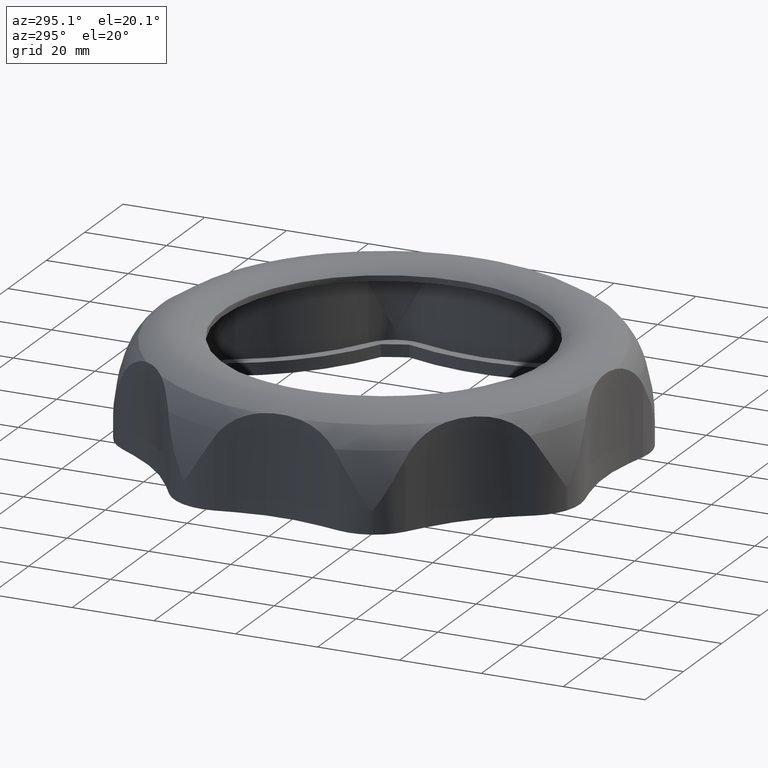
[diagram: clean part render]
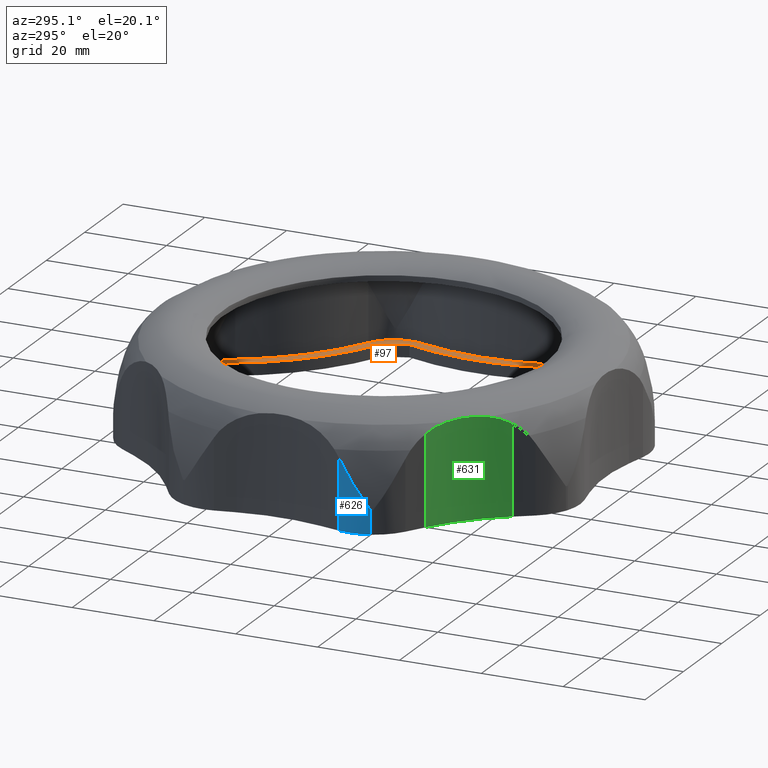
[diagram: same view with three faces highlighted in distinct colors, each labeled with its STEP entity id]
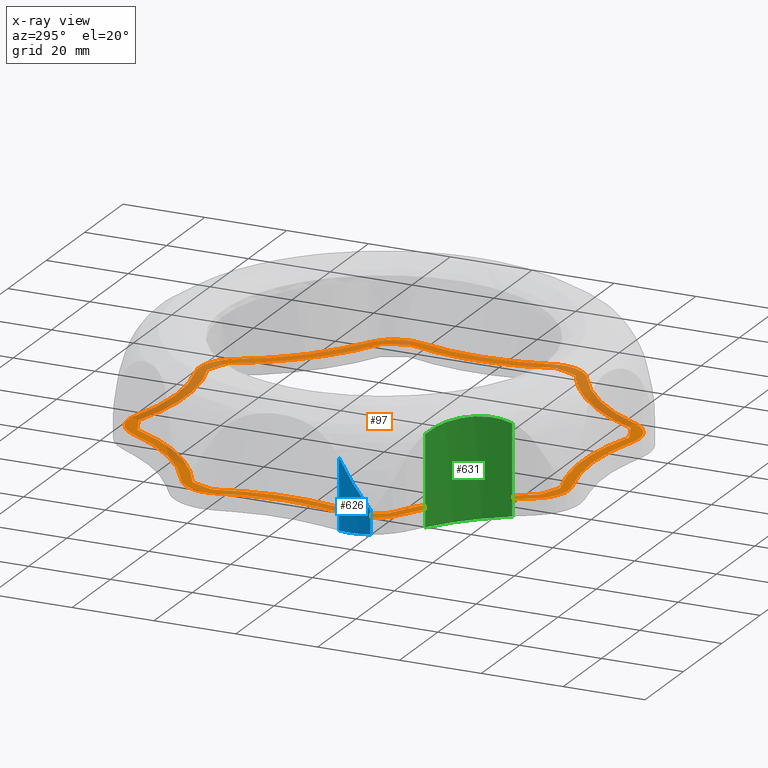
[diagram: x-ray of the same camera — body ghosted, the three highlighted faces saturated]
A machine part, auxiliary view with three faces highlighted in distinct colors.
The next image is the same camera in x-ray (body ghosted, the three faces saturated) — at least one of them is partly hidden behind the body in this view.
Their STEP definitions:

[orange] entity #97 — the highlighted planar face has unit normal (0, -0, 1).
#97 = ADVANCED_FACE( '', ( #2423, #2424 ), #2425, .T. );
#2423 = FACE_BOUND( '', #7059, .T. );
#2424 = FACE_OUTER_BOUND( '', #7060, .T. );
#2425 = PLANE( '', #7061 );
#7059 = EDGE_LOOP( '', ( #14120, #14121, #14122, #14123, #14124, #14125, #14126, #14127, #14128, #14129, #14130, #14131, #14132, #14133, #14134, #14135 ) );
#7060 = EDGE_LOOP( '', ( #14136, #14137, #14138, #14139, #14140, #14141, #14142, #14143, #14144, #14145, #14146, #14147, #14148, #14149, #14150, #14151 ) );
#7061 = AXIS2_PLACEMENT_3D( '', #14152, #14153, #14154 );
#14120 = ORIENTED_EDGE( '', *, *, #34302, .F. );
#14121 = ORIENTED_EDGE( '', *, *, #34303, .F. );
#14122 = ORIENTED_EDGE( '', *, *, #34304, .F. );
#14123 = ORIENTED_EDGE( '', *, *, #34305, .F. );
#14124 = ORIENTED_EDGE( '', *, *, #34306, .F. );
#14125 = ORIENTED_EDGE( '', *, *, #34307, .F. );
#14126 = ORIENTED_EDGE( '', *, *, #34308, .F. );
#14127 = ORIENTED_EDGE( '', *, *, #34309, .F. );
#14128 = ORIENTED_EDGE( '', *, *, #34310, .F. );
#14129 = ORIENTED_EDGE( '', *, *, #34311, .F. );
#14130 = ORIENTED_EDGE( '', *, *, #34312, .F. );
#14131 = ORIENTED_EDGE( '', *, *, #34313, .F. );
#14132 = ORIENTED_EDGE( '', *, *, #34314, .F. );
#14133 = ORIENTED_EDGE( '', *, *, #34315, .F. );
#14134 = ORIENTED_EDGE( '', *, *, #34316, .F. );
#14135 = ORIENTED_EDGE( '', *, *, #34317, .F. );
#14136 = ORIENTED_EDGE( '', *, *, #34318, .T. );
#14137 = ORIENTED_EDGE( '', *, *, #34319, .T. );
#14138 = ORIENTED_EDGE( '', *, *, #34320, .T. );
#14139 = ORIENTED_EDGE( '', *, *, #34321, .T. );
#14140 = ORIENTED_EDGE( '', *, *, #34322, .T. );
#14141 = ORIENTED_EDGE( '', *, *, #34323, .T. );
#14142 = ORIENTED_EDGE( '', *, *, #34324, .T. );
#14143 = ORIENTED_EDGE( '', *, *, #34325, .T. );
#14144 = ORIENTED_EDGE( '', *, *, #34326, .T. );
#14145 = ORIENTED_EDGE( '', *, *, #34327, .T. );
#14146 = ORIENTED_EDGE( '', *, *, #34328, .T. );
#14147 = ORIENTED_EDGE( '', *, *, #34329, .T. );
#14148 = ORIENTED_EDGE( '', *, *, #34330, .T. );
#14149 = ORIENTED_EDGE( '', *, *, #34331, .T. );
#14150 = ORIENTED_EDGE( '', *, *, #34332, .T. );
#14151 = ORIENTED_EDGE( '', *, *, #34333, .T. );
#14152 = CARTESIAN_POINT( '', ( 0.000000000000000, 0.000000000000000, 3.00026158654195 ) );
#14153 = DIRECTION( '', ( 2.34318281388423E-017, -5.65694372839885E-017, 1.00000000000000 ) );
#14154 = DIRECTION( '', ( 0.382683432365090, -0.923879532511287, -6.12303176911189E-017 ) );
#34302 = EDGE_CURVE( '', #43152, #43153, #43154, .T. );
#34303 = EDGE_CURVE( '', #43155, #43152, #43156, .T. );
#34304 = EDGE_CURVE( '', #43157, #43155, #43158, .T. );
#34305 = EDGE_CURVE( '', #43159, #43157, #43160, .T. );
#34306 = EDGE_CURVE( '', #43161, #43159, #43162, .T. );
#34307 = EDGE_CURVE( '', #43163, #43161, #43164, .T. );
#34308 = EDGE_CURVE( '', #43165, #43163, #43166, .T. );
#34309 = EDGE_CURVE( '', #43167, #43165, #43168, .T. );
#34310 = EDGE_CURVE( '', #43169, #43167, #43170, .T. );
#34311 = EDGE_CURVE( '', #43171, #43169, #43172, .T. );
#34312 = EDGE_CURVE( '', #43173, #43171, #43174, .T. );
#34313 = EDGE_CURVE( '', #43175, #43173, #43176, .T. );
#34314 = EDGE_CURVE( '', #43177, #43175, #43178, .T. );
#34315 = EDGE_CURVE( '', #43179, #43177, #43180, .T. );
#34316 = EDGE_CURVE( '', #43181, #43179, #43182, .T. );
#34317 = EDGE_CURVE( '', #43153, #43181, #43183, .T. );
#34318 = EDGE_CURVE( '', #43184, #43185, #43186, .F. );
#34319 = EDGE_CURVE( '', #43185, #43187, #43188, .T. );
#34320 = EDGE_CURVE( '', #43187, #43189, #43190, .F. );
#34321 = EDGE_CURVE( '', #43189, #43191, #43192, .T. );
#34322 = EDGE_CURVE( '', #43191, #43193, #43194, .F. );
#34323 = EDGE_CURVE( '', #43193, #43195, #43196, .T. );
#34324 = EDGE_CURVE( '', #43195, #43197, #43198, .F. );
#34325 = EDGE_CURVE( '', #43197, #43199, #43200, .T. );
#34326 = EDGE_CURVE( '', #43199, #43201, #43202, .F. );
#34327 = EDGE_CURVE( '', #43201, #43203, #43204, .T. );
#34328 = EDGE_CURVE( '', #43203, #43205, #43206, .F. );
#34329 = EDGE_CURVE( '', #43205, #43207, #43208, .T. );
#34330 = EDGE_CURVE( '', #43207, #43209, #43210, .F. );
#34331 = EDGE_CURVE( '', #43209, #43211, #43212, .T. );
#34332 = EDGE_CURVE( '', #43211, #43213, #43214, .F. );
#34333 = EDGE_CURVE( '', #43213, #43184, #43215, .T. );
#43152 = VERTEX_POINT( '', #61375 );
#43153 = VERTEX_POINT( '', #61376 );
#43154 = CIRCLE( '', #61377, 55.0000000000000 );
#43155 = VERTEX_POINT( '', #61378 );
#43156 = CIRCLE( '', #61379, 54.5000000000000 );
#43157 = VERTEX_POINT( '', #61380 );
#43158 = CIRCLE( '', #61381, 55.0000000000000 );
#43159 = VERTEX_POINT( '', #61382 );
#43160 = CIRCLE( '', #61383, 54.5000000000000 );
#43161 = VERTEX_POINT( '', #61384 );
#43162 = CIRCLE( '', #61385, 55.0000000000000 );
#43163 = VERTEX_POINT( '', #61386 );
#43164 = CIRCLE( '', #61387, 54.5000000000000 );
#43165 = VERTEX_POINT( '', #61388 );
#43166 = CIRCLE( '', #61389, 55.0000000000000 );
#43167 = VERTEX_POINT( '', #61390 );
#43168 = CIRCLE( '', #61391, 54.5000000000000 );
#43169 = VERTEX_POINT( '', #61392 );
#43170 = CIRCLE( '', #61393, 55.0000000000000 );
#43171 = VERTEX_POINT( '', #61394 );
#43172 = CIRCLE( '', #61395, 54.5000000000000 );
#43173 = VERTEX_POINT( '', #61396 );
#43174 = CIRCLE( '', #61397, 55.0000000000000 );
#43175 = VERTEX_POINT( '', #61398 );
#43176 = CIRCLE( '', #61399, 54.5000000000000 );
#43177 = VERTEX_POINT( '', #61400 );
#43178 = CIRCLE( '', #61401, 55.0000000000000 );
#43179 = VERTEX_POINT( '', #61402 );
#43180 = CIRCLE( '', #61403, 54.5000000000000 );
#43181 = VERTEX_POINT( '', #61404 );
#43182 = CIRCLE( '', #61405, 55.0000000000000 );
#43183 = CIRCLE( '', #61406, 54.5000000000000 );
#43184 = VERTEX_POINT( '', #61407 );
#43185 = VERTEX_POINT( '', #61408 );
#43186 = CIRCLE( '', #61409, 52.5000000000000 );
#43187 = VERTEX_POINT( '', #61410 );
#43188 = CIRCLE( '', #61411, 9.25000000000000 );
#43189 = VERTEX_POINT( '', #61412 );
#43190 = CIRCLE( '', #61413, 52.5000000000000 );
#43191 = VERTEX_POINT( '', #61414 );
#43192 = CIRCLE( '', #61415, 9.25000000000000 );
#43193 = VERTEX_POINT( '', #61416 );
#43194 = CIRCLE( '', #61417, 52.5000000000000 );
#43195 = VERTEX_POINT( '', #61418 );
#43196 = CIRCLE( '', #61419, 9.25000000000000 );
#43197 = VERTEX_POINT( '', #61420 );
#43198 = CIRCLE( '', #61421, 52.5000000000000 );
#43199 = VERTEX_POINT( '', #61422 );
#43200 = CIRCLE( '', #61423, 9.25000000000000 );
#43201 = VERTEX_POINT( '', #61424 );
#43202 = CIRCLE( '', #61425, 52.5000000000000 );
#43203 = VERTEX_POINT( '', #61426 );
#43204 = CIRCLE( '', #61427, 9.25000000000000 );
#43205 = VERTEX_POINT( '', #61428 );
#43206 = CIRCLE( '', #61429, 52.5000000000000 );
#43207 = VERTEX_POINT( '', #61430 );
#43208 = CIRCLE( '', #61431, 9.25000000000000 );
#43209 = VERTEX_POINT( '', #61432 );
#43210 = CIRCLE( '', #61433, 52.5000000000000 );
#43211 = VERTEX_POINT( '', #61434 );
#43212 = CIRCLE( '', #61435, 9.25000000000000 );
#43213 = VERTEX_POINT( '', #61436 );
#43214 = CIRCLE( '', #61437, 52.5000000000000 );
#43215 = CIRCLE( '', #61438, 9.25000000000000 );
#61375 = CARTESIAN_POINT( '', ( 51.4855074424355, -17.8743537895755, 3.00026158654195 ) );
#61376 = CARTESIAN_POINT( '', ( 51.4855073118274, 17.8743541657801, 3.00026158654195 ) );
#61377 = AXIS2_PLACEMENT_3D( '', #79022, #79023, #79024 );
#61378 = CARTESIAN_POINT( '', ( 49.0448282193130, -23.7666746714405, 3.00026158654195 ) );
#61379 = AXIS2_PLACEMENT_3D( '', #79025, #79026, #79027 );
#61380 = CARTESIAN_POINT( '', ( 23.7666743130698, -49.0448283929761, 3.00026158654195 ) );
#61381 = AXIS2_PLACEMENT_3D( '', #79028, #79029, #79030 );
#61382 = CARTESIAN_POINT( '', ( 17.8743541657800, -51.4855073118278, 3.00026158654195 ) );
#61383 = AXIS2_PLACEMENT_3D( '', #79031, #79032, #79033 );
#61384 = CARTESIAN_POINT( '', ( -17.8743537895752, -51.4855074424358, 3.00026158654195 ) );
#61385 = AXIS2_PLACEMENT_3D( '', #79034, #79035, #79036 );
#61386 = CARTESIAN_POINT( '', ( -23.7666746714406, -49.0448282193128, 3.00026158654195 ) );
#61387 = AXIS2_PLACEMENT_3D( '', #79037, #79038, #79039 );
#61388 = CARTESIAN_POINT( '', ( -49.0448283929761, -23.7666743130698, 3.00026158654195 ) );
#61389 = AXIS2_PLACEMENT_3D( '', #79040, #79041, #79042 );
#61390 = CARTESIAN_POINT( '', ( -51.4855073118277, -17.8743541657802, 3.00026158654195 ) );
#61391 = AXIS2_PLACEMENT_3D( '', #79043, #79044, #79045 );
#61392 = CARTESIAN_POINT( '', ( -51.4855074424357, 17.8743537895755, 3.00026158654195 ) );
#61393 = AXIS2_PLACEMENT_3D( '', #79046, #79047, #79048 );
#61394 = CARTESIAN_POINT( '', ( -49.0448282193129, 23.7666746714403, 3.00026158654195 ) );
#61395 = AXIS2_PLACEMENT_3D( '', #79049, #79050, #79051 );
#61396 = CARTESIAN_POINT( '', ( -23.7666743130698, 49.0448283929758, 3.00026158654195 ) );
#61397 = AXIS2_PLACEMENT_3D( '', #79052, #79053, #79054 );
#61398 = CARTESIAN_POINT( '', ( -17.8743541657803, 51.4855073118279, 3.00026158654195 ) );
#61399 = AXIS2_PLACEMENT_3D( '', #79055, #79056, #79057 );
#61400 = CARTESIAN_POINT( '', ( 17.8743537895756, 51.4855074424355, 3.00026158654195 ) );
#61401 = AXIS2_PLACEMENT_3D( '', #79058, #79059, #79060 );
#61402 = CARTESIAN_POINT( '', ( 23.7666746714405, 49.0448282193125, 3.00026158654195 ) );
#61403 = AXIS2_PLACEMENT_3D( '', #79061, #79062, #79063 );
#61404 = CARTESIAN_POINT( '', ( 49.0448283929758, 23.7666743130697, 3.00026158654195 ) );
#61405 = AXIS2_PLACEMENT_3D( '', #79064, #79065, #79066 );
#61406 = AXIS2_PLACEMENT_3D( '', #79067, #79068, #79069 );
#61407 = CARTESIAN_POINT( '', ( -26.6614398292063, 48.8594961466960, 3.00026158654195 ) );
#61408 = CARTESIAN_POINT( '', ( -48.8607622491486, 26.6607776143258, 3.00026158654195 ) );
#61409 = AXIS2_PLACEMENT_3D( '', #79070, #79071, #79072 );
#61410 = CARTESIAN_POINT( '', ( -53.4017933733948, 15.6977595489630, 3.00026158654195 ) );
#61411 = AXIS2_PLACEMENT_3D( '', #79073, #79074, #79075 );
#61412 = CARTESIAN_POINT( '', ( -53.4022206087429, -15.6991237293330, 3.00026158654195 ) );
#61413 = AXIS2_PLACEMENT_3D( '', #79076, #79077, #79078 );
#61414 = CARTESIAN_POINT( '', ( -48.8594961465664, -26.6614398292739, 3.00026158654195 ) );
#61415 = AXIS2_PLACEMENT_3D( '', #79079, #79080, #79081 );
#61416 = CARTESIAN_POINT( '', ( -26.6607776143259, -48.8607622491487, 3.00026158654195 ) );
#61417 = AXIS2_PLACEMENT_3D( '', #79082, #79083, #79084 );
#61418 = CARTESIAN_POINT( '', ( -15.6977595489627, -53.4017933733948, 3.00026158654195 ) );
#61419 = AXIS2_PLACEMENT_3D( '', #79085, #79086, #79087 );
#61420 = CARTESIAN_POINT( '', ( 15.6991237293332, -53.4022206087428, 3.00026158654195 ) );
#61421 = AXIS2_PLACEMENT_3D( '', #79088, #79089, #79090 );
#61422 = CARTESIAN_POINT( '', ( 26.6614398290892, -48.8594961469198, 3.00026158654195 ) );
#61423 = AXIS2_PLACEMENT_3D( '', #79091, #79092, #79093 );
#61424 = CARTESIAN_POINT( '', ( 48.8607622491487, -26.6607776143259, 3.00026158654195 ) );
#61425 = AXIS2_PLACEMENT_3D( '', #79094, #79095, #79096 );
#61426 = CARTESIAN_POINT( '', ( 53.4017933733948, -15.6977595489626, 3.00026158654195 ) );
#61427 = AXIS2_PLACEMENT_3D( '', #79097, #79098, #79099 );
#61428 = CARTESIAN_POINT( '', ( 53.4022206087428, 15.6991237293335, 3.00026158654195 ) );
#61429 = AXIS2_PLACEMENT_3D( '', #79100, #79101, #79102 );
#61430 = CARTESIAN_POINT( '', ( 48.8594961466960, 26.6614398292064, 3.00026158654195 ) );
#61431 = AXIS2_PLACEMENT_3D( '', #79103, #79104, #79105 );
#61432 = CARTESIAN_POINT( '', ( 26.6607776143258, 48.8607622491486, 3.00026158654195 ) );
#61433 = AXIS2_PLACEMENT_3D( '', #79106, #79107, #79108 );
#61434 = CARTESIAN_POINT( '', ( 15.6977595489629, 53.4017933733950, 3.00026158654195 ) );
#61435 = AXIS2_PLACEMENT_3D( '', #79109, #79110, #79111 );
#61436 = CARTESIAN_POINT( '', ( -15.6991237291288, 53.4022206086788, 3.00026158654190 ) );
#61437 = AXIS2_PLACEMENT_3D( '', #79112, #79113, #79114 );
#61438 = AXIS2_PLACEMENT_3D( '', #79115, #79116, #79117 );
#79022 = CARTESIAN_POINT( '', ( 103.500000260180, 3.78137333945094E-007, 3.00026158654195 ) );
#79023 = DIRECTION( '', ( 0.000000000000000, 0.000000000000000, -1.00000000000000 ) );
#79024 = DIRECTION( '', ( -0.945718048852388, 0.324988264518633, 0.000000000000000 ) );
#79025 = CARTESIAN_POINT( '', ( 0.000000000000000, 0.000000000000000, 3.00026158654195 ) );
#79026 = DIRECTION( '', ( 0.000000000000000, 0.000000000000000, 1.00000000000000 ) );
#79027 = DIRECTION( '', ( 0.899905108690962, -0.436085766050564, 0.000000000000000 ) );
#79028 = CARTESIAN_POINT( '', ( 73.1855517693992, -73.1855523041662, 3.00026158654195 ) );
#79029 = DIRECTION( '', ( 0.000000000000000, 0.000000000000000, -1.00000000000000 ) );
#79030 = DIRECTION( '', ( -0.713453722273192, 0.700702352054371, 0.000000000000000 ) );
#79031 = CARTESIAN_POINT( '', ( 0.000000000000000, 0.000000000000000, 3.00026158654195 ) );
#79032 = DIRECTION( '', ( 0.000000000000000, 0.000000000000000, 1.00000000000000 ) );
#79033 = DIRECTION( '', ( 0.327969802426512, -0.944688207133081, 0.000000000000000 ) );
#79034 = CARTESIAN_POINT( '', ( 3.78137278433943E-007, -103.500000260180, 3.00026158654195 ) );
#79035 = DIRECTION( '', ( 0.000000000000000, 0.000000000000000, -1.00000000000000 ) );
#79036 = DIRECTION( '', ( 0.00901658035114906, 0.999959349813167, 0.000000000000000 ) );
#79037 = CARTESIAN_POINT( '', ( 0.000000000000000, 0.000000000000000, 3.00026158654195 ) );
#79038 = DIRECTION( '', ( 0.000000000000000, 0.000000000000000, 1.00000000000000 ) );
#79039 = DIRECTION( '', ( -0.436085766050564, -0.899905108690963, 0.000000000000000 ) );
#79040 = CARTESIAN_POINT( '', ( -73.1855523041662, -73.1855517693992, 3.00026158654195 ) );
#79041 = DIRECTION( '', ( 0.000000000000000, 0.000000000000000, -1.00000000000000 ) );
#79042 = DIRECTION( '', ( 0.898525051081206, 0.438922239786863, 0.000000000000000 ) );
#79043 = CARTESIAN_POINT( '', ( 0.000000000000000, 0.000000000000000, 3.00026158654195 ) );
#79044 = DIRECTION( '', ( 0.000000000000000, 0.000000000000000, 1.00000000000000 ) );
#79045 = DIRECTION( '', ( -0.944688207133081, -0.327969802426512, 0.000000000000000 ) );
#79046 = CARTESIAN_POINT( '', ( -103.500000260180, -3.78137354761776E-007, 3.00026158654195 ) );
#79047 = DIRECTION( '', ( 0.000000000000000, 0.000000000000000, -1.00000000000000 ) );
#79048 = DIRECTION( '', ( 0.945718048852388, -0.324988264518631, 0.000000000000000 ) );
#79049 = CARTESIAN_POINT( '', ( 0.000000000000000, 0.000000000000000, 3.00026158654195 ) );
#79050 = DIRECTION( '', ( 0.000000000000000, 0.000000000000000, 1.00000000000000 ) );
#79051 = DIRECTION( '', ( -0.899905108690963, 0.436085766050564, 0.000000000000000 ) );
#79052 = CARTESIAN_POINT( '', ( -73.1855517693993, 73.1855523041661, 3.00026158654195 ) );
#79053 = DIRECTION( '', ( 0.000000000000000, 0.000000000000000, -1.00000000000000 ) );
#79054 = DIRECTION( '', ( 0.713453722273192, -0.700702352054371, 0.000000000000000 ) );
#79055 = CARTESIAN_POINT( '', ( 0.000000000000000, 0.000000000000000, 3.00026158654195 ) );
#79056 = DIRECTION( '', ( 0.000000000000000, 0.000000000000000, 1.00000000000000 ) );
#79057 = DIRECTION( '', ( -0.327969802426512, 0.944688207133081, 0.000000000000000 ) );
#79058 = CARTESIAN_POINT( '', ( -3.78137333945094E-007, 103.500000260180, 3.00026158654195 ) );
#79059 = DIRECTION( '', ( 0.000000000000000, 0.000000000000000, -1.00000000000000 ) );
#79060 = DIRECTION( '', ( -0.00901658035114906, -0.999959349813167, 0.000000000000000 ) );
#79061 = CARTESIAN_POINT( '', ( 0.000000000000000, 0.000000000000000, 3.00026158654195 ) );
#79062 = DIRECTION( '', ( 0.000000000000000, 0.000000000000000, 1.00000000000000 ) );
#79063 = DIRECTION( '', ( 0.436085766050564, 0.899905108690962, 0.000000000000000 ) );
#79064 = CARTESIAN_POINT( '', ( 73.1855523041662, 73.1855517693992, 3.00026158654195 ) );
#79065 = DIRECTION( '', ( 0.000000000000000, 0.000000000000000, -1.00000000000000 ) );
#79066 = DIRECTION( '', ( -0.898525051081206, -0.438922239786862, 0.000000000000000 ) );
#79067 = CARTESIAN_POINT( '', ( 0.000000000000000, 0.000000000000000, 3.00026158654195 ) );
#79068 = DIRECTION( '', ( 0.000000000000000, 0.000000000000000, 1.00000000000000 ) );
#79069 = DIRECTION( '', ( 0.944688207133081, 0.327969802426513, 0.000000000000000 ) );
#79070 = CARTESIAN_POINT( '', ( -73.1855517693992, 73.1855523041662, 3.00026158654195 ) );
#79071 = DIRECTION( '', ( 2.34318281388423E-017, -5.65694372839885E-017, 1.00000000000000 ) );
#79072 = DIRECTION( '', ( 0.382683432365090, -0.923879532511287, -6.12303176911189E-017 ) );
#79073 = CARTESIAN_POINT( '', ( -44.5749660354414, 18.4635554741999, 3.00026158654195 ) );
#79074 = DIRECTION( '', ( 2.34318281388423E-017, -5.65694372839885E-017, 1.00000000000000 ) );
#79075 = DIRECTION( '', ( 0.382683432365090, -0.923879532511287, -6.12303176911189E-017 ) );
#79076 = CARTESIAN_POINT( '', ( -103.500000260180, -3.78137313128413E-007, 3.00026158654195 ) );
#79077 = DIRECTION( '', ( 2.34318281388423E-017, -5.65694372839885E-017, 1.00000000000000 ) );
#79078 = DIRECTION( '', ( 0.382683432365090, -0.923879532511287, -6.12303176911189E-017 ) );
#79079 = CARTESIAN_POINT( '', ( -44.5749664372734, -18.4635556406442, 3.00026158654195 ) );
#79080 = DIRECTION( '', ( 2.34318281388423E-017, -5.65694372839885E-017, 1.00000000000000 ) );
#79081 = DIRECTION( '', ( 0.382683432365090, -0.923879532511287, -6.12303176911189E-017 ) );
#79082 = CARTESIAN_POINT( '', ( -73.1855523041662, -73.1855517693992, 3.00026158654195 ) );
#79083 = DIRECTION( '', ( 2.34318281388423E-017, -5.65694372839885E-017, 1.00000000000000 ) );
#79084 = DIRECTION( '', ( 0.382683432365090, -0.923879532511287, -6.12303176911189E-017 ) );
#79085 = CARTESIAN_POINT( '', ( -18.4635554741999, -44.5749660354413, 3.00026158654195 ) );
#79086 = DIRECTION( '', ( 2.34318281388423E-017, -5.65694372839885E-017, 1.00000000000000 ) );
#79087 = DIRECTION( '', ( 0.382683432365090, -0.923879532511287, -6.12303176911189E-017 ) );
#79088 = CARTESIAN_POINT( '', ( 3.78137333945094E-007, -103.500000260180, 3.00026158654195 ) );
#79089 = DIRECTION( '', ( 2.34318281388423E-017, -5.65694372839885E-017, 1.00000000000000 ) );
#79090 = DIRECTION( '', ( 0.382683432365090, -0.923879532511287, -6.12303176911189E-017 ) );
#79091 = CARTESIAN_POINT( '', ( 18.4635556406442, -44.5749664372734, 3.00026158654195 ) );
#79092 = DIRECTION( '', ( 2.34318281388423E-017, -5.65694372839885E-017, 1.00000000000000 ) );
#79093 = DIRECTION( '', ( 0.382683432365090, -0.923879532511287, -6.12303176911189E-017 ) );
#79094 = CARTESIAN_POINT( '', ( 73.1855517693992, -73.1855523041662, 3.00026158654195 ) );
#79095 = DIRECTION( '', ( 2.34318281388423E-017, -5.65694372839885E-017, 1.00000000000000 ) );
#79096 = DIRECTION( '', ( 0.382683432365090, -0.923879532511287, -6.12303176911189E-017 ) );
#79097 = CARTESIAN_POINT( '', ( 44.5749660354414, -18.4635554741999, 3.00026158654195 ) );
#79098 = DIRECTION( '', ( 2.34318281388423E-017, -5.65694372839885E-017, 1.00000000000000 ) );
#79099 = DIRECTION( '', ( 0.382683432365090, -0.923879532511287, -6.12303176911189E-017 ) );
#79100 = CARTESIAN_POINT( '', ( 103.500000260180, 3.78137333945094E-007, 3.00026158654195 ) );
#79101 = DIRECTION( '', ( 2.34318281388423E-017, -5.65694372839885E-017, 1.00000000000000 ) );
#79102 = DIRECTION( '', ( 0.382683432365090, -0.923879532511287, -6.12303176911189E-017 ) );
#79103 = CARTESIAN_POINT( '', ( 44.5749664372734, 18.4635556406442, 3.00026158654195 ) );
#79104 = DIRECTION( '', ( 2.34318281388423E-017, -5.65694372839885E-017, 1.00000000000000 ) );
#79105 = DIRECTION( '', ( 0.382683432365090, -0.923879532511287, -6.12303176911189E-017 ) );
#79106 = CARTESIAN_POINT( '', ( 73.1855523041662, 73.1855517693992, 3.00026158654195 ) );
#79107 = DIRECTION( '', ( 2.34318281388423E-017, -5.65694372839885E-017, 1.00000000000000 ) );
#79108 = DIRECTION( '', ( 0.382683432365090, -0.923879532511287, -6.12303176911189E-017 ) );
#79109 = CARTESIAN_POINT( '', ( 18.4635554741999, 44.5749660354414, 3.00026158654195 ) );
#79110 = DIRECTION( '', ( 2.34318281388423E-017, -5.65694372839885E-017, 1.00000000000000 ) );
#79111 = DIRECTION( '', ( 0.382683432365090, -0.923879532511287, -6.12303176911189E-017 ) );
#79112 = CARTESIAN_POINT( '', ( -3.78137333945094E-007, 103.500000260180, 3.00026158654195 ) );
#79113 = DIRECTION( '', ( 2.34318281388423E-017, -5.65694372839885E-017, 1.00000000000000 ) );
#79114 = DIRECTION( '', ( 0.382683432365090, -0.923879532511287, -6.12303176911189E-017 ) );
#79115 = CARTESIAN_POINT( '', ( -18.4635556406442, 44.5749664372734, 3.00026158654195 ) );
#79116 = DIRECTION( '', ( 2.34318281388423E-017, -5.65694372839885E-017, 1.00000000000000 ) );
#79117 = DIRECTION( '', ( 0.382683432365090, -0.923879532511287, -6.12303176911189E-017 ) );

[blue] entity #626 — the highlighted cylindrical surface (partial cylindrical patch) has radius 13 mm, axis along (0, 0, -1).
#626 = ADVANCED_FACE( '', ( #3489 ), #3490, .T. );
#3489 = FACE_OUTER_BOUND( '', #8191, .T. );
#3490 = CYLINDRICAL_SURFACE( '', #8192, 13.0000000000000 );
#8191 = EDGE_LOOP( '', ( #20068, #20069, #20070, #20071 ) );
#8192 = AXIS2_PLACEMENT_3D( '', #20072, #20073, #20074 );
#20068 = ORIENTED_EDGE( '', *, *, #37189, .F. );
#20069 = ORIENTED_EDGE( '', *, *, #32238, .T. );
#20070 = ORIENTED_EDGE( '', *, *, #34486, .T. );
#20071 = ORIENTED_EDGE( '', *, *, #37190, .T. );
#20072 = CARTESIAN_POINT( '', ( -43.4223380280305, -17.9861213211592, -174.263509895744 ) );
#20073 = DIRECTION( '', ( 0.000000000000000, 0.000000000000000, -1.00000000000000 ) );
#20074 = DIRECTION( '', ( -0.838208748931108, 0.545349514729175, 0.000000000000000 ) );
#32238 = EDGE_CURVE( '', #39046, #39044, #39047, .T. );
#34486 = EDGE_CURVE( '', #39044, #43451, #43453, .T. );
#37189 = EDGE_CURVE( '', #39046, #48398, #48399, .T. );
#37190 = EDGE_CURVE( '', #43451, #48398, #48400, .T. );
#39044 = VERTEX_POINT( '', #50304 );
#39046 = VERTEX_POINT( '', #50306 );
#39047 = CIRCLE( '', #50307, 13.0000000000000 );
#43451 = VERTEX_POINT( '', #62018 );
#43453 = LINE( '', #62020, #62021 );
#48398 = VERTEX_POINT( '', #75050 );
#48399 = LINE( '', #75051, #75052 );
#48400 = B_SPLINE_CURVE_WITH_KNOTS( '', 3, ( #75053, #75054, #75055, #75056, #75057, #75058, #75059, #75060, #75061, #75062, #75063, #75064, #75065, #75066 ), .UNSPECIFIED., .F., .F., ( 4, 2, 2, 2, 2, 2, 4 ), ( 3.12551144229986E-007, 0.000426683405729649, 0.000853054260315069, 0.00170579596948590, 0.00341127938782757, 0.00682224622451091, 0.0136441798978776 ), .UNSPECIFIED. );
#50304 = CARTESIAN_POINT( '', ( -55.5380278656658, -22.6988763283944, 0.000261586541951825 ) );
#50306 = CARTESIAN_POINT( '', ( -56.1405426232419, -15.2940455654744, 0.000261586541951825 ) );
#50307 = AXIS2_PLACEMENT_3D( '', #78929, #78930, #78931 );
#62018 = CARTESIAN_POINT( '', ( -55.5380278656660, -22.6988763283939, 5.74965444315344 ) );
#62020 = CARTESIAN_POINT( '', ( -55.5380278656658, -22.6988763283944, 13.6002615865420 ) );
#62021 = VECTOR( '', #79191, 1000.00000000000 );
#75050 = CARTESIAN_POINT( '', ( -56.1405426232396, -15.2940455654642, 17.1142441578054 ) );
#75051 = CARTESIAN_POINT( '', ( -56.1405426232419, -15.2940455654744, -174.263509895744 ) );
#75052 = VECTOR( '', #79645, 1000.00000000000 );
#75053 = CARTESIAN_POINT( '', ( -55.5380278656658, -22.6988763283944, 5.74965444315385 ) );
#75054 = CARTESIAN_POINT( '', ( -55.5811008155196, -22.5881431160759, 5.84061402049326 ) );
#75055 = CARTESIAN_POINT( '', ( -55.6139491374945, -22.4997660893570, 5.94842265463295 ) );
#75056 = CARTESIAN_POINT( '', ( -55.6762700875070, -22.3277246678065, 6.16781646813889 ) );
#75057 = CARTESIAN_POINT( '', ( -55.7046791676522, -22.2465399263658, 6.28125748220292 ) );
#75058 = CARTESIAN_POINT( '', ( -55.7858059309544, -22.0076811752345, 6.62547909540643 ) );
#75059 = CARTESIAN_POINT( '', ( -55.8343291039328, -21.8549191800076, 6.86032054347964 ) );
#75060 = CARTESIAN_POINT( '', ( -55.9702748513039, -21.3992956271064, 7.56839995390690 ) );
#75061 = CARTESIAN_POINT( '', ( -56.0476089383346, -21.1001989568883, 8.04601658807295 ) );
#75062 = CARTESIAN_POINT( '', ( -56.2476513498808, -20.1977086506661, 9.48127264501959 ) );
#75063 = CARTESIAN_POINT( '', ( -56.3374039842301, -19.5909072696714, 10.4432159481109 ) );
#75064 = CARTESIAN_POINT( '', ( -56.4778492304579, -17.7609688896821, 13.3127367762062 ) );
#75065 = CARTESIAN_POINT( '', ( -56.4012048165349, -16.5254949767776, 15.2134550022076 ) );
#75066 = CARTESIAN_POINT( '', ( -56.1405426232399, -15.2940455654642, 17.1142441578054 ) );
#78929 = CARTESIAN_POINT( '', ( -43.4223380280305, -17.9861213211592, 0.000261586541951825 ) );
#78930 = DIRECTION( '', ( 2.34318281388423E-017, -5.65694372839885E-017, 1.00000000000000 ) );
#78931 = DIRECTION( '', ( 0.382683432365090, -0.923879532511287, -6.12303176911189E-017 ) );
#79191 = DIRECTION( '', ( 0.000000000000000, 0.000000000000000, 1.00000000000000 ) );
#79645 = DIRECTION( '', ( 0.000000000000000, 0.000000000000000, 1.00000000000000 ) );

[green] entity #631 — the highlighted cylindrical surface (partial cylindrical patch) has radius 49.5 mm, axis along (0, 0, -1).
#631 = ADVANCED_FACE( '', ( #3499 ), #3500, .F. );
#3499 = FACE_OUTER_BOUND( '', #8223, .T. );
#3500 = CYLINDRICAL_SURFACE( '', #8224, 49.5000000000000 );
#8223 = EDGE_LOOP( '', ( #20104, #20105, #20106, #20107, #20108, #20109 ) );
#8224 = AXIS2_PLACEMENT_3D( '', #20110, #20111, #20112 );
#20104 = ORIENTED_EDGE( '', *, *, #37183, .F. );
#20105 = ORIENTED_EDGE( '', *, *, #32234, .T. );
#20106 = ORIENTED_EDGE( '', *, *, #37197, .T. );
#20107 = ORIENTED_EDGE( '', *, *, #37200, .T. );
#20108 = ORIENTED_EDGE( '', *, *, #32247, .T. );
#20109 = ORIENTED_EDGE( '', *, *, #37201, .T. );
#20110 = CARTESIAN_POINT( '', ( -73.1855523041662, -73.1855517693992, -174.263509895744 ) );
#20111 = DIRECTION( '', ( 0.000000000000000, 0.000000000000000, -1.00000000000000 ) );
#20112 = DIRECTION( '', ( -0.838208748931108, 0.545349514729175, 0.000000000000000 ) );
#32234 = EDGE_CURVE( '', #39038, #39036, #39039, .F. );
#32247 = EDGE_CURVE( '', #39064, #39062, #39065, .T. );
#37183 = EDGE_CURVE( '', #39038, #48389, #48390, .T. );
#37197 = EDGE_CURVE( '', #39036, #48410, #48411, .T. );
#37200 = EDGE_CURVE( '', #48410, #39064, #48415, .T. );
#37201 = EDGE_CURVE( '', #39062, #48389, #48416, .T. );
#39036 = VERTEX_POINT( '', #50294 );
#39038 = VERTEX_POINT( '', #50297 );
#39039 = CIRCLE( '', #50298, 49.5000000000000 );
#39062 = VERTEX_POINT( '', #50342 );
#39064 = VERTEX_POINT( '', #50344 );
#39065 = B_SPLINE_CURVE_WITH_KNOTS( '', 3, ( #50345, #50346, #50347, #50348, #50349, #50350, #50351, #50352, #50353, #50354 ), .UNSPECIFIED., .F., .F., ( 4, 2, 2, 2, 4 ), ( 1.03755640133433E-006, 0.00252258468903733, 0.00504413182167332, 0.00756567895430932, 0.0100872260869453 ), .UNSPECIFIED. );
#48389 = VERTEX_POINT( '', #75023 );
#48390 = LINE( '', #75024, #75025 );
#48410 = VERTEX_POINT( '', #75099 );
#48411 = LINE( '', #75100, #75101 );
#48415 = B_SPLINE_CURVE_WITH_KNOTS( '', 3, ( #75113, #75114, #75115, #75116, #75117, #75118 ), .UNSPECIFIED., .F., .F., ( 4, 2, 4 ), ( -0.0157093972413123, -0.0128993333692693, -0.0100892694972262 ), .UNSPECIFIED. );
#48416 = B_SPLINE_CURVE_WITH_KNOTS( '', 3, ( #75119, #75120, #75121, #75122, #75123, #75124 ), .UNSPECIFIED., .F., .F., ( 4, 2, 4 ), ( 9.82226906213840E-007, 0.00280804691438442, 0.00561511160186263 ), .UNSPECIFIED. );
#50294 = CARTESIAN_POINT( '', ( -31.6942200521601, -46.1907495298265, 0.000261586541951825 ) );
#50297 = CARTESIAN_POINT( '', ( -46.1907513250722, -31.6942186973091, 0.000261586541951825 ) );
#50298 = AXIS2_PLACEMENT_3D( '', #78919, #78920, #78921 );
#50342 = CARTESIAN_POINT( '', ( -41.9273798578986, -34.8035682964286, 23.8905679243228 ) );
#50344 = CARTESIAN_POINT( '', ( -34.8035685836432, -41.9273796271016, 23.8905680812026 ) );
#50345 = CARTESIAN_POINT( '', ( -34.8035685877184, -41.9273796220977, 23.8905679197089 ) );
#50346 = CARTESIAN_POINT( '', ( -35.3323838698996, -41.2780460828862, 24.0524351581984 ) );
#50347 = CARTESIAN_POINT( '', ( -35.8778163129710, -40.6419500039820, 24.1658566324921 ) );
#50348 = CARTESIAN_POINT( '', ( -37.0015221522755, -39.3969569092714, 24.3157692466395 ) );
#50349 = CARTESIAN_POINT( '', ( -37.5797961010759, -38.7880516428773, 24.3521011750727 ) );
#50350 = CARTESIAN_POINT( '', ( -38.7693487947153, -37.5978737650107, 24.3528530133698 ) );
#50351 = CARTESIAN_POINT( '', ( -39.3806232338135, -37.0165985054501, 24.3172996558171 ) );
#50352 = CARTESIAN_POINT( '', ( -40.6369433829648, -35.8820068043961, 24.1668885730962 ) );
#50353 = CARTESIAN_POINT( '', ( -41.2787936159060, -35.3317749904039, 24.0522488750711 ) );
#50354 = CARTESIAN_POINT( '', ( -41.9273798578986, -34.8035682964284, 23.8905679243230 ) );
#75023 = CARTESIAN_POINT( '', ( -46.1907513250721, -31.6942186973091, 21.9737848241913 ) );
#75024 = CARTESIAN_POINT( '', ( -46.1907513250722, -31.6942186973091, -174.263509895744 ) );
#75025 = VECTOR( '', #79642, 1000.00000000000 );
#75099 = CARTESIAN_POINT( '', ( -31.6942200521721, -46.1907495298079, 21.9737858870481 ) );
#75100 = CARTESIAN_POINT( '', ( -31.6942200521601, -46.1907495298265, -174.263509895744 ) );
#75101 = VECTOR( '', #79651, 1000.00000000000 );
#75113 = CARTESIAN_POINT( '', ( -31.6942200521721, -46.1907495298081, 21.9737858870486 ) );
#75114 = CARTESIAN_POINT( '', ( -32.1439683151392, -45.4994810980965, 22.4436530515071 ) );
#75115 = CARTESIAN_POINT( '', ( -32.6285460116440, -44.7926623947192, 22.8245210050161 ) );
#75116 = CARTESIAN_POINT( '', ( -33.6651073941388, -43.3667429305474, 23.4528223135741 ) );
#75117 = CARTESIAN_POINT( '', ( -34.2171336616087, -42.6474644589404, 23.6998011140334 ) );
#75118 = CARTESIAN_POINT( '', ( -34.8035685836432, -41.9273796271016, 23.8905680812026 ) );
#75119 = CARTESIAN_POINT( '', ( -41.9273799007044, -34.8035682615676, 23.8905680760915 ) );
#75120 = CARTESIAN_POINT( '', ( -42.6466405089281, -34.2178045766271, 23.7000194624846 ) );
#75121 = CARTESIAN_POINT( '', ( -43.3654665266755, -33.6660704887516, 23.4532988331085 ) );
#75122 = CARTESIAN_POINT( '', ( -44.7913432135867, -32.6294695302478, 22.8251882322091 ) );
#75123 = CARTESIAN_POINT( '', ( -45.4985737516914, -32.1445584297816, 22.4442701032775 ) );
#75124 = CARTESIAN_POINT( '', ( -46.1907513250722, -31.6942186973093, 21.9737848241912 ) );
#78919 = CARTESIAN_POINT( '', ( -73.1855523041662, -73.1855517693992, 0.000261586541951825 ) );
#78920 = DIRECTION( '', ( 2.34318281388423E-017, -5.65694372839885E-017, 1.00000000000000 ) );
#78921 = DIRECTION( '', ( 0.382683432365090, -0.923879532511287, -6.12303176911189E-017 ) );
#79642 = DIRECTION( '', ( 0.000000000000000, 0.000000000000000, 1.00000000000000 ) );
#79651 = DIRECTION( '', ( 0.000000000000000, 0.000000000000000, 1.00000000000000 ) );